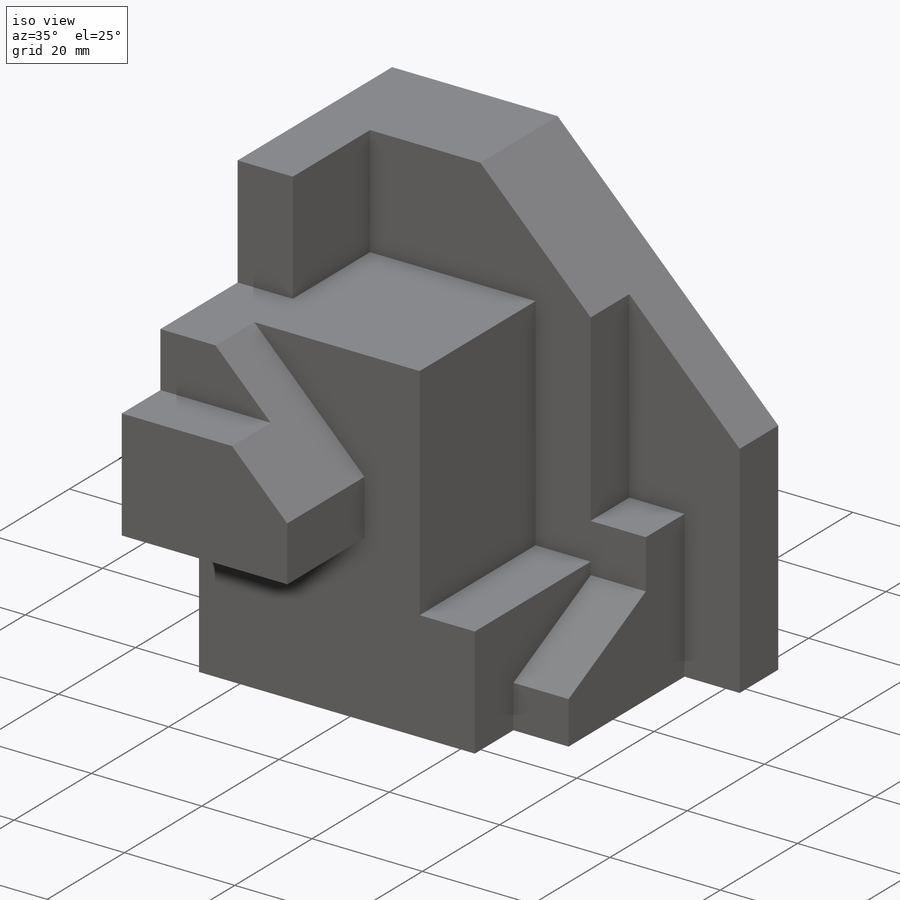
[diagram: iso view]
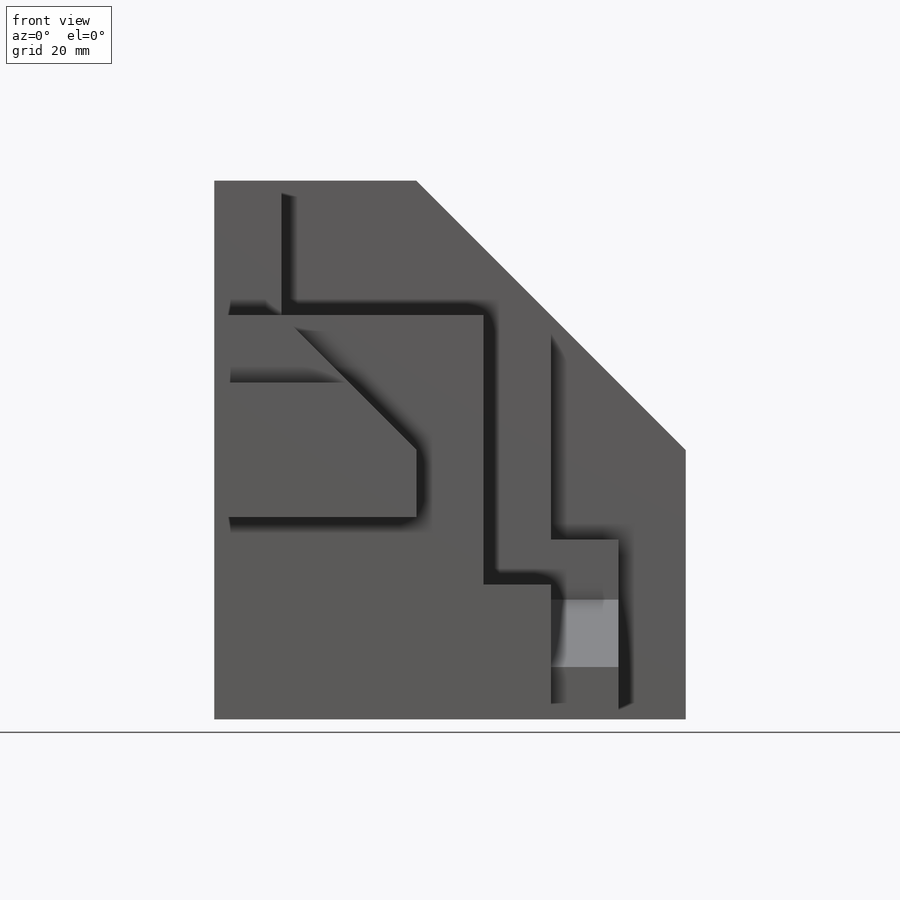
[diagram: front view]
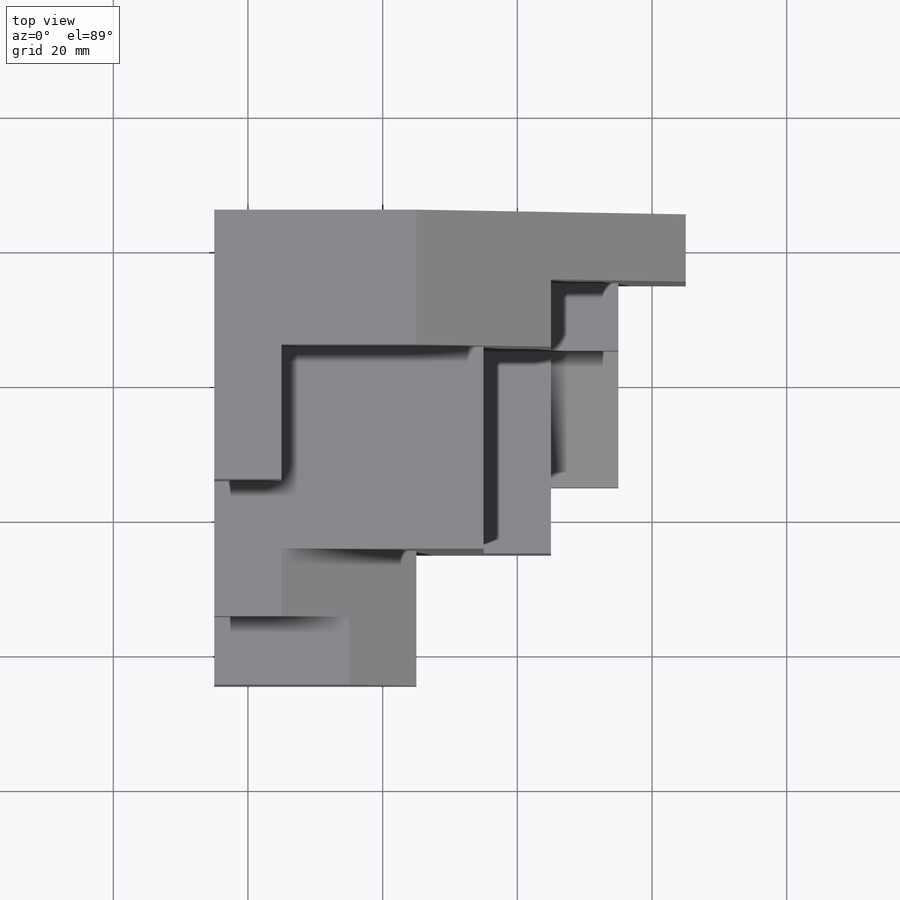
[diagram: top view]
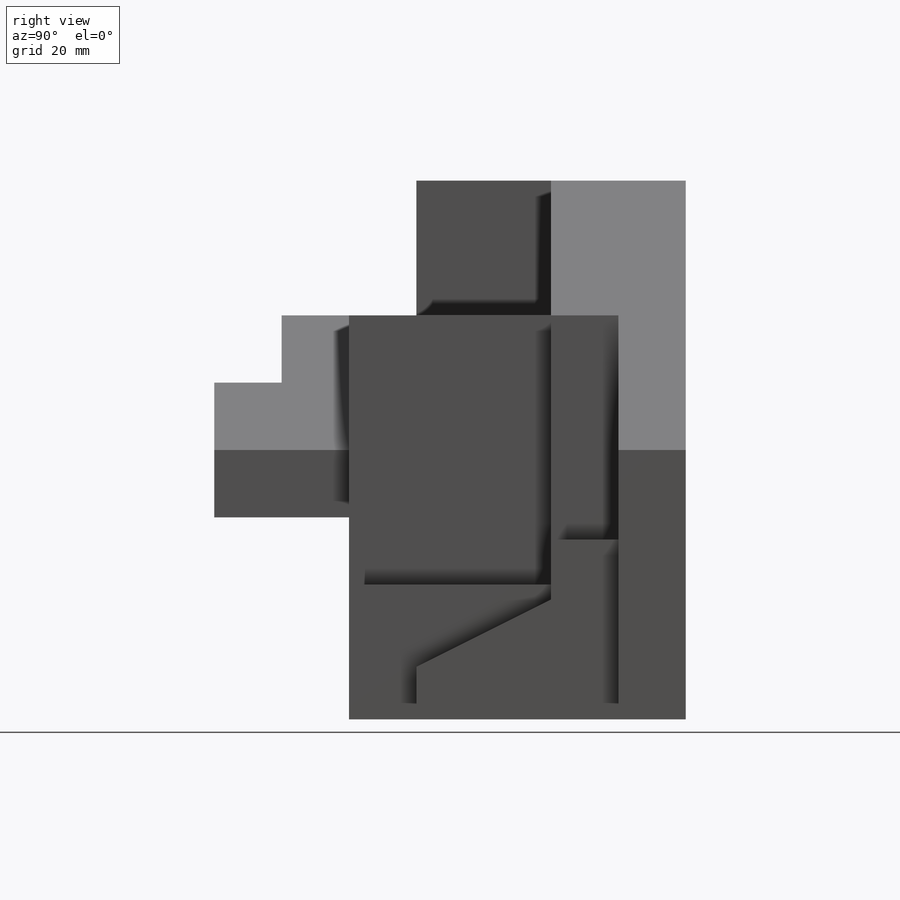
[diagram: right view]
SOLIDWORKS PART (.sldprt)
format: sldprt  version: not decoded by parser v0  size: 249,856 bytes
history: native  units: mm
features: sketch x7, extrude x5, cut_extrude x2, chamfer x2, material x1 (+13 scaffold rows collapsed)
feature tree (30):
  scaffold x13  (default folders/planes/origin — collapsed)
  material  "Material <not specified>"
  sketch  "Sketch1"  dims[D1=50.0mm D2=50.0mm]
  extrude  "Boss-Extrude1"  Depth=60mm
  sketch  "Sketch2"  dims[D1=30.0mm D2=10.0mm]
  cut_extrude  "Cut-Extrude1"  Depth=40mm
  sketch  "Sketch3"  dims[D1=30.0mm D2=20.0mm]
  extrude  "Boss-Extrude2"  Depth=30mm
  chamfer  "Chamfer1"  Distance=20mm
  sketch  "Sketch4"  dims[D1=10.0mm D2=10.0mm]
  cut_extrude  "Cut-Extrude2"  Depth=40mm
  sketch  "Sketch6"  dims[D1=80.0mm D2=10.0mm]
  extrude  "Boss-Extrude3"  Depth=20mm
  sketch  "Sketch7"  dims[c1.D1=25.0mm c1.D2=~6.749021mm c2.D1=40.0mm c2.D2=10.0mm c2.D3=20.0mm c2.D4=20.0mm]
  extrude  "Boss-Extrude4"  Depth=20mm
  chamfer  "Chamfer2"  Distance=40mm
  sketch  "Sketch8"  dims[D1=10.0mm D2=10.0mm D3=20.0mm]
  extrude  "Boss-Extrude5"  Depth=10mm
decode coverage: 16 of 16 modeling features carry decoded parameters
note: ~ marks probable driven/reference dimensions
note: suppression state not decoded; provenance and decode notes live in map.json
